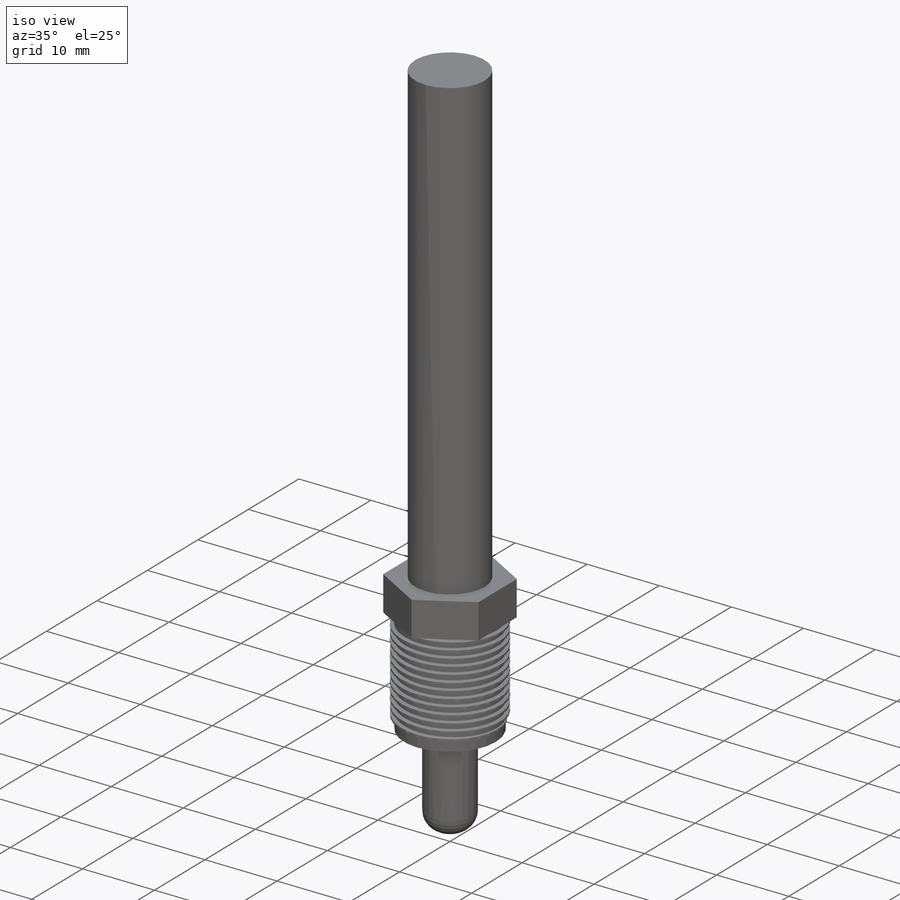
[diagram: iso view]
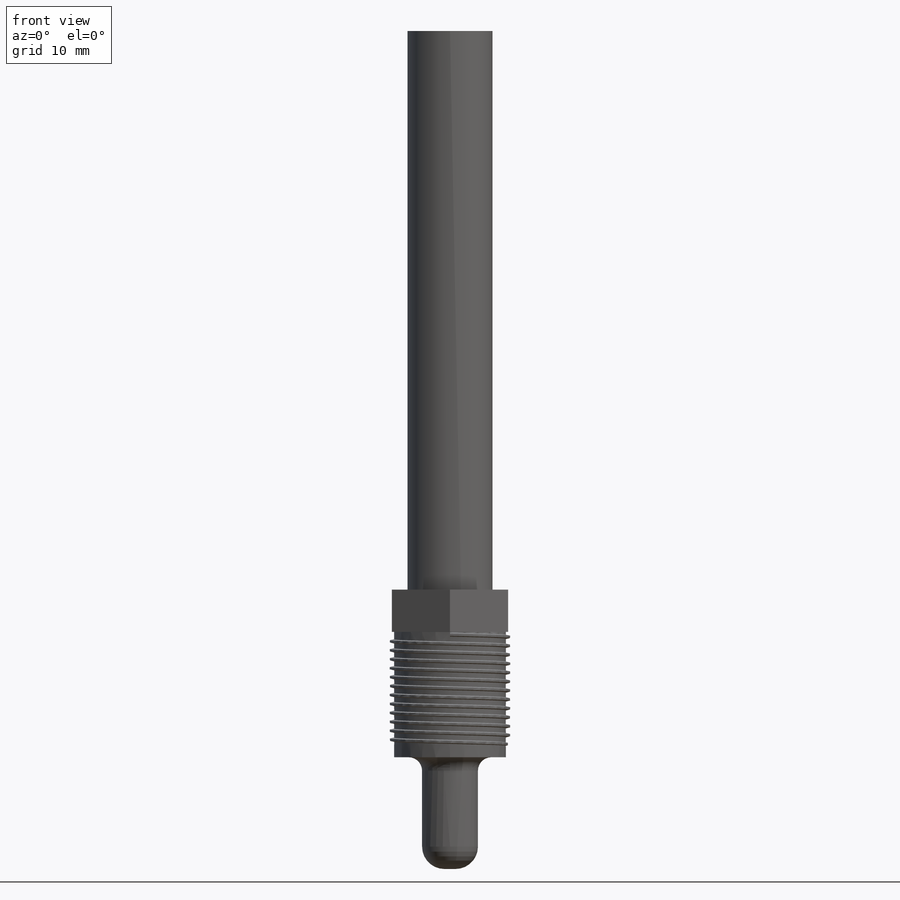
[diagram: front view]
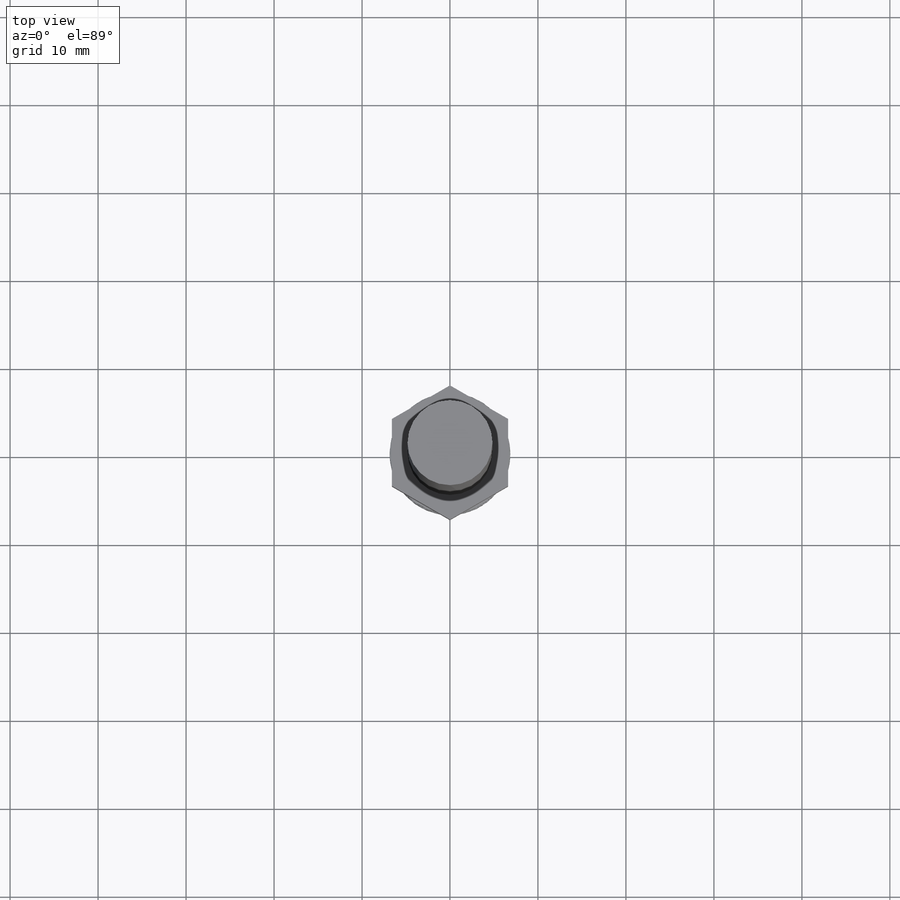
[diagram: top view]
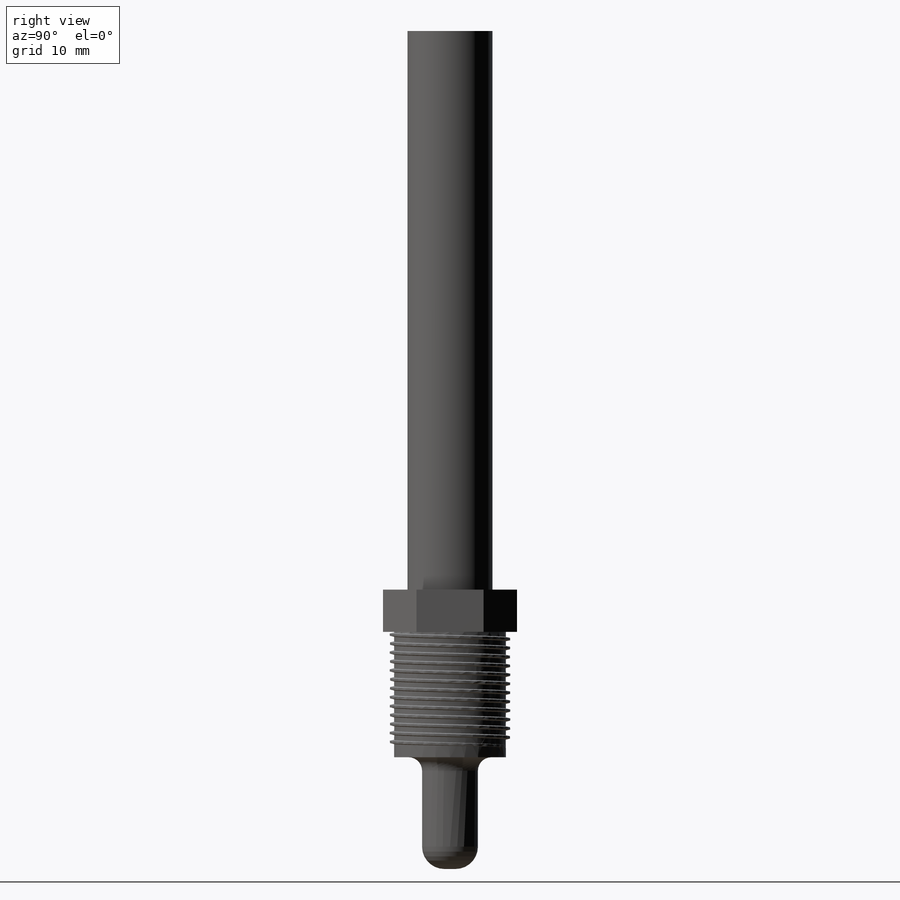
[diagram: right view]
SOLIDWORKS PART (.sldprt)
format: sldprt  version: not decoded by parser v0  size: 767,488 bytes
history: native  units: mm
features: sketch x5, material x1, revolve x1, plane x1, helix x1, sweep x1, cut_extrude x1, pattern_circular x1 (+16 scaffold rows collapsed)
feature tree (28):
  scaffold x16  (default folders/planes/origin — collapsed)
  material  "AISI 304"
  sketch  "Sketch1"  dims[D8=2.54mm D9=1.524mm D1=63.5mm D2=12.7mm D3=19.05mm D4=3.175mm D5=6.35mm D6=7.62mm D7=4.826mm]
  revolve  "Revolve1"  Angle=360deg
  plane  "Plane1"  Offset=13.208mm
  sketch  "Sketch3"  dims[D1=0.4572mm D2=0.254mm D3=0.1016mm D4=0.127mm]
  sketch  "Sketch6"  dims[D1=1.016mm]
  helix  "Helix/Spiral2"  Pitch=0mm
  sweep  "Sweep3"
  sketch  "Sketch7"  dims[D1=0.508mm D2=1.524mm]
  cut_extrude  "Cut-Extrude1"  Depth=12.7mm
  sketch  "Sketch8"
  pattern_circular  "CirPattern1"  Count=6  [1 undecoded]
decode coverage: 8 of 10 modeling features carry decoded parameters
note: 1 parameter value undecoded
note: suppression state not decoded; provenance and decode notes live in map.json
